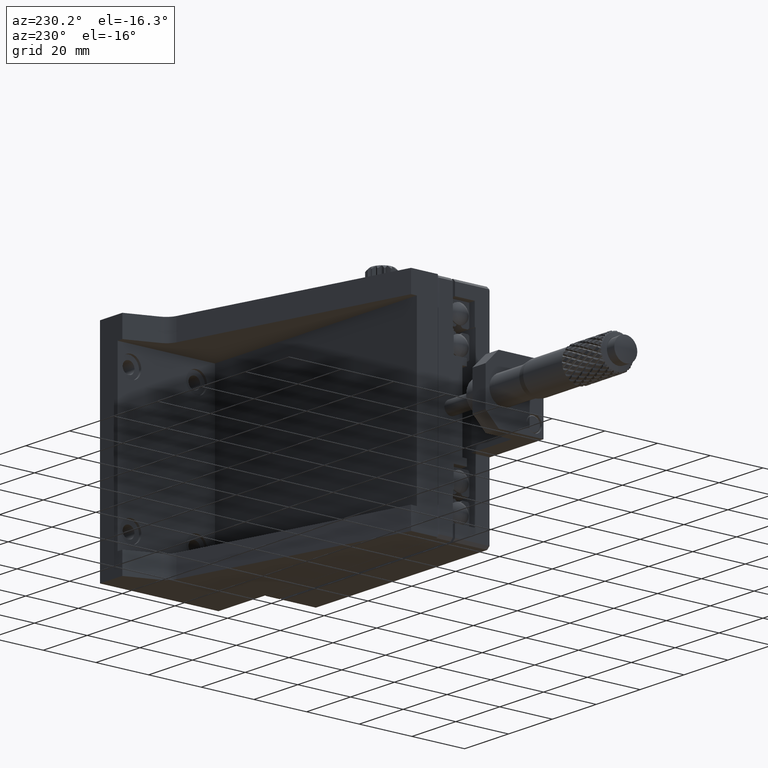
[diagram: clean part render]
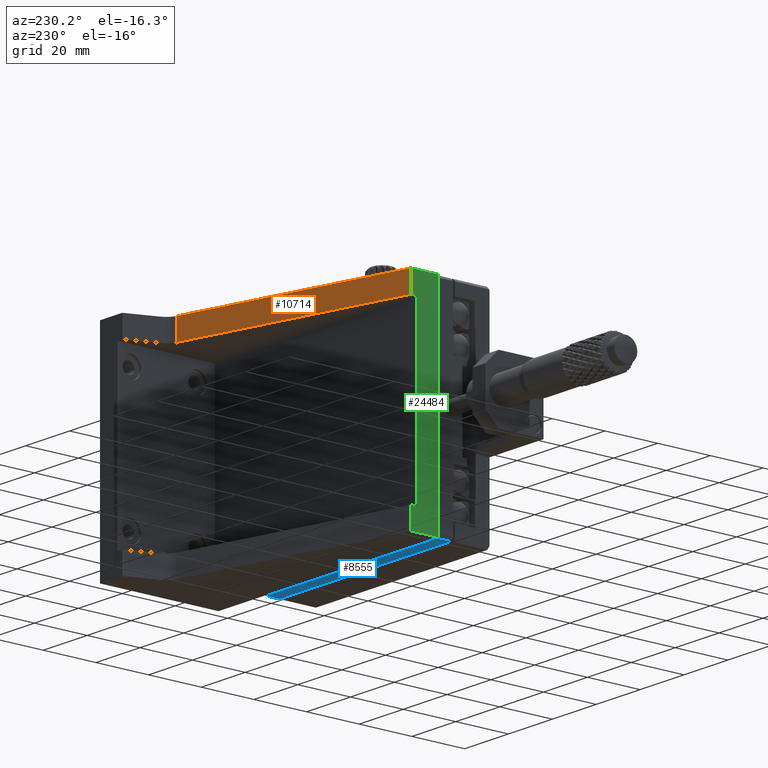
[diagram: same view with three faces highlighted in distinct colors, each labeled with its STEP entity id]
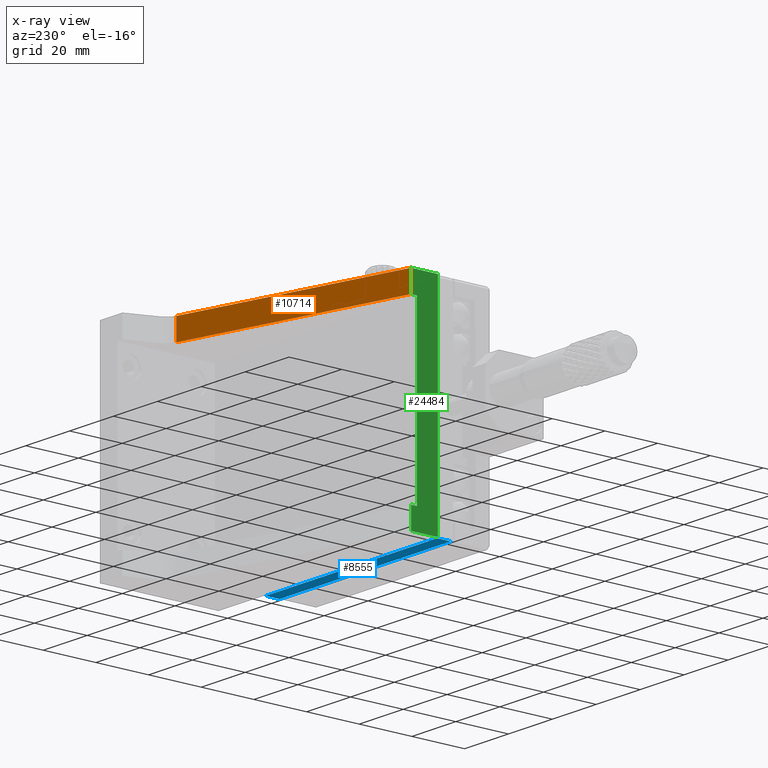
[diagram: x-ray of the same camera — body ghosted, the three highlighted faces saturated]
A machine part, auxiliary view with three faces highlighted in distinct colors.
The next image is the same camera in x-ray (body ghosted, the three faces saturated) — at least one of them is partly hidden behind the body in this view.
Their STEP definitions:

[orange] entity #10714 — the highlighted planar face has unit normal (0.2419, -0.9703, 0).
#511 = LINE ( 'NONE', #42593, #19809 ) ;
#2347 = EDGE_LOOP ( 'NONE', ( #17444, #37672, #26089, #45894 ) ) ;
#3021 = DIRECTION ( 'NONE',  ( 0.9702962835833601751, 0.2419196603509510546, 0.000000000000000000 ) ) ;
#3286 = EDGE_CURVE ( 'NONE', #30863, #34710, #8139, .T. ) ;
#3466 = DIRECTION ( 'NONE',  ( -0.000000000000000000, -0.000000000000000000, 1.000000000000000000 ) ) ;
#6544 = VECTOR ( 'NONE', #3021, 1000.000000000000000 ) ;
#8139 = LINE ( 'NONE', #22640, #11632 ) ;
#10714 = ADVANCED_FACE ( 'NONE', ( #37203 ), #13154, .F. ) ;
#11073 = CARTESIAN_POINT ( 'NONE',  ( 24.50000000000000000, 29.88799999999999812, 40.00000000000000000 ) ) ;
#11632 = VECTOR ( 'NONE', #46687, 999.9999999999998863 ) ;
#12595 = VERTEX_POINT ( 'NONE', #42671 ) ;
#13154 = PLANE ( 'NONE',  #27701 ) ;
#14038 = CARTESIAN_POINT ( 'NONE',  ( 106.7899008257490152, 50.40497527332474448, 32.00000000000000000 ) ) ;
#15444 = CARTESIAN_POINT ( 'NONE',  ( 106.7899008426495016, 50.40497527753849738, 32.00000000000000000 ) ) ;
#17444 = ORIENTED_EDGE ( 'NONE', *, *, #40138, .T. ) ;
#19809 = VECTOR ( 'NONE', #27629, 1000.000000000000000 ) ;
#21490 = CARTESIAN_POINT ( 'NONE',  ( 106.7899008257490152, 50.40497527332474448, 40.00000000000000000 ) ) ;
#22640 = CARTESIAN_POINT ( 'NONE',  ( 106.7899008426495016, 50.40497527753849738, 40.00000000000000000 ) ) ;
#25985 = VERTEX_POINT ( 'NONE', #14038 ) ;
#26089 = ORIENTED_EDGE ( 'NONE', *, *, #32382, .T. ) ;
#26838 = VECTOR ( 'NONE', #3466, 1000.000000000000000 ) ;
#27629 = DIRECTION ( 'NONE',  ( 0.000000000000000000, 0.000000000000000000, -1.000000000000000000 ) ) ;
#27701 = AXIS2_PLACEMENT_3D ( 'NONE', #29333, #32655, #44800 ) ;
#27710 = CARTESIAN_POINT ( 'NONE',  ( 24.50000000000000000, 29.88800000000000168, 40.00000000000000000 ) ) ;
#29333 = CARTESIAN_POINT ( 'NONE',  ( 106.7899008426495016, 50.40497527753849738, 40.00000000000000000 ) ) ;
#30863 = VERTEX_POINT ( 'NONE', #21490 ) ;
#32382 = EDGE_CURVE ( 'NONE', #30863, #25985, #511, .T. ) ;
#32655 = DIRECTION ( 'NONE',  ( 0.2419196603509510546, -0.9702962835833601751, 0.000000000000000000 ) ) ;
#34710 = VERTEX_POINT ( 'NONE', #27710 ) ;
#37203 = FACE_OUTER_BOUND ( 'NONE', #2347, .T. ) ;
#37386 = EDGE_CURVE ( 'NONE', #12595, #25985, #42031, .T. ) ;
#37672 = ORIENTED_EDGE ( 'NONE', *, *, #3286, .F. ) ;
#40138 = EDGE_CURVE ( 'NONE', #12595, #34710, #45779, .T. ) ;
#42031 = LINE ( 'NONE', #15444, #6544 ) ;
#42593 = CARTESIAN_POINT ( 'NONE',  ( 106.7899008426495300, 50.40497527753842633, 40.00000000000000000 ) ) ;
#42671 = CARTESIAN_POINT ( 'NONE',  ( 24.49999999999998934, 29.88800000000002655, 32.00000000000000000 ) ) ;
#44800 = DIRECTION ( 'NONE',  ( 0.9702962835833601751, 0.2419196603509510546, 0.000000000000000000 ) ) ;
#45779 = LINE ( 'NONE', #11073, #26838 ) ;
#45894 = ORIENTED_EDGE ( 'NONE', *, *, #37386, .F. ) ;
#46687 = DIRECTION ( 'NONE',  ( -0.9702962835833600641, -0.2419196603509519428, 0.000000000000000000 ) ) ;

[blue] entity #8555 — the highlighted planar face has unit normal (0, 0, -1).
#192 = CARTESIAN_POINT ( 'NONE',  ( 103.5000000000000142, 7.699999999999998401, -40.00000000000000000 ) ) ;
#595 = CARTESIAN_POINT ( 'NONE',  ( 103.5000000000000142, 19.19999999999999929, -39.99999999999999289 ) ) ;
#4889 = DIRECTION ( 'NONE',  ( -0.000000000000000000, -1.000000000000000000, -0.000000000000000000 ) ) ;
#4909 = EDGE_CURVE ( 'NONE', #43316, #31457, #8448, .T. ) ;
#5383 = CARTESIAN_POINT ( 'NONE',  ( 103.5000000000000142, 7.699999999999998401, -40.00000000000000000 ) ) ;
#6942 = CARTESIAN_POINT ( 'NONE',  ( 103.5000000000000142, 13.99999999999999822, -40.00000000000000000 ) ) ;
#7562 = PLANE ( 'NONE',  #31949 ) ;
#8448 = LINE ( 'NONE', #5383, #49684 ) ;
#8555 = ADVANCED_FACE ( 'NONE', ( #15451 ), #7562, .T. ) ;
#9381 = ORIENTED_EDGE ( 'NONE', *, *, #37538, .T. ) ;
#11043 = LINE ( 'NONE', #18656, #50116 ) ;
#12644 = CARTESIAN_POINT ( 'NONE',  ( 103.4999999999999858, 14.00000000000000178, -40.00000000000000711 ) ) ;
#14667 = VECTOR ( 'NONE', #38112, 1000.000000000000000 ) ;
#15451 = FACE_OUTER_BOUND ( 'NONE', #46545, .T. ) ;
#15692 = DIRECTION ( 'NONE',  ( -1.000000000000000000, 0.000000000000000000, -0.000000000000000000 ) ) ;
#17133 = VECTOR ( 'NONE', #17753, 1000.000000000000000 ) ;
#17753 = DIRECTION ( 'NONE',  ( 1.000000000000000000, 0.000000000000000000, 0.000000000000000000 ) ) ;
#18656 = CARTESIAN_POINT ( 'NONE',  ( 25.50000000000000355, 7.699999999999998401, -40.00000000000000000 ) ) ;
#19380 = ORIENTED_EDGE ( 'NONE', *, *, #4909, .T. ) ;
#19936 = CARTESIAN_POINT ( 'NONE',  ( 25.50000000000000355, 19.19999999999999574, -39.99999999999999289 ) ) ;
#20363 = EDGE_CURVE ( 'NONE', #33602, #42155, #11043, .T. ) ;
#22693 = LINE ( 'NONE', #6942, #14667 ) ;
#23070 = DIRECTION ( 'NONE',  ( 0.000000000000000000, 0.000000000000000000, -1.000000000000000000 ) ) ;
#25845 = CARTESIAN_POINT ( 'NONE',  ( 24.50000000000000000, 19.19999999999999929, -40.00000000000000000 ) ) ;
#31457 = VERTEX_POINT ( 'NONE', #12644 ) ;
#31949 = AXIS2_PLACEMENT_3D ( 'NONE', #192, #23070, #15692 ) ;
#33602 = VERTEX_POINT ( 'NONE', #40211 ) ;
#36743 = LINE ( 'NONE', #25845, #17133 ) ;
#37538 = EDGE_CURVE ( 'NONE', #31457, #33602, #22693, .T. ) ;
#38083 = ORIENTED_EDGE ( 'NONE', *, *, #39666, .T. ) ;
#38112 = DIRECTION ( 'NONE',  ( -1.000000000000000000, 0.000000000000000000, -0.000000000000000000 ) ) ;
#38394 = DIRECTION ( 'NONE',  ( 0.000000000000000000, 1.000000000000000000, 0.000000000000000000 ) ) ;
#39666 = EDGE_CURVE ( 'NONE', #42155, #43316, #36743, .T. ) ;
#40211 = CARTESIAN_POINT ( 'NONE',  ( 25.49999999999998579, 13.99999999999999822, -39.99999999999999289 ) ) ;
#42155 = VERTEX_POINT ( 'NONE', #19936 ) ;
#43316 = VERTEX_POINT ( 'NONE', #595 ) ;
#46467 = ORIENTED_EDGE ( 'NONE', *, *, #20363, .T. ) ;
#46545 = EDGE_LOOP ( 'NONE', ( #46467, #38083, #19380, #9381 ) ) ;
#49684 = VECTOR ( 'NONE', #4889, 1000.000000000000000 ) ;
#50116 = VECTOR ( 'NONE', #38394, 1000.000000000000000 ) ;

[green] entity #24484 — the highlighted planar face has unit normal (1, 0, 0).
#716 = LINE ( 'NONE', #16203, #22746 ) ;
#1797 = CARTESIAN_POINT ( 'NONE',  ( 24.50000000000000000, 55.25645668702769342, 40.00000000000000000 ) ) ;
#1836 = CARTESIAN_POINT ( 'NONE',  ( 24.50000000000000000, 19.69999999999999929, 40.00000000000000000 ) ) ;
#3466 = DIRECTION ( 'NONE',  ( -0.000000000000000000, -0.000000000000000000, 1.000000000000000000 ) ) ;
#4233 = EDGE_LOOP ( 'NONE', ( #5777, #12429, #14939, #17475, #24837, #8057, #39241, #46584 ) ) ;
#5348 = LINE ( 'NONE', #1797, #35756 ) ;
#5777 = ORIENTED_EDGE ( 'NONE', *, *, #33720, .F. ) ;
#6278 = VECTOR ( 'NONE', #46219, 1000.000000000000000 ) ;
#6525 = LINE ( 'NONE', #41751, #41462 ) ;
#7769 = CARTESIAN_POINT ( 'NONE',  ( 24.50000000000000000, 27.69999999999999574, -32.00000000000000000 ) ) ;
#8057 = ORIENTED_EDGE ( 'NONE', *, *, #26269, .F. ) ;
#8180 = EDGE_CURVE ( 'NONE', #33866, #18026, #13267, .T. ) ;
#8767 = DIRECTION ( 'NONE',  ( -0.000000000000000000, -0.000000000000000000, 1.000000000000000000 ) ) ;
#10296 = CARTESIAN_POINT ( 'NONE',  ( 24.50000000000000000, 19.69999999999999929, 40.00000000000000000 ) ) ;
#10579 = CARTESIAN_POINT ( 'NONE',  ( 24.49999999999998934, 29.88800000000002655, -32.00000000000000711 ) ) ;
#10819 = EDGE_CURVE ( 'NONE', #45261, #44167, #6525, .T. ) ;
#11073 = CARTESIAN_POINT ( 'NONE',  ( 24.50000000000000000, 29.88799999999999812, 40.00000000000000000 ) ) ;
#11326 = CARTESIAN_POINT ( 'NONE',  ( 24.50000000000000000, 27.69999999999999929, 40.00000000000000000 ) ) ;
#12397 = EDGE_CURVE ( 'NONE', #23427, #45261, #36387, .T. ) ;
#12429 = ORIENTED_EDGE ( 'NONE', *, *, #10819, .F. ) ;
#12595 = VERTEX_POINT ( 'NONE', #42671 ) ;
#12757 = VECTOR ( 'NONE', #8767, 1000.000000000000000 ) ;
#13267 = LINE ( 'NONE', #1836, #39252 ) ;
#14789 = EDGE_CURVE ( 'NONE', #23427, #33866, #19119, .T. ) ;
#14939 = ORIENTED_EDGE ( 'NONE', *, *, #12397, .F. ) ;
#16203 = CARTESIAN_POINT ( 'NONE',  ( 24.50000000000000000, 29.88799999999999812, 32.00000000000000000 ) ) ;
#17475 = ORIENTED_EDGE ( 'NONE', *, *, #14789, .T. ) ;
#17478 = CARTESIAN_POINT ( 'NONE',  ( 24.50000000000000000, 27.69999999999999574, 32.00000000000000000 ) ) ;
#18026 = VERTEX_POINT ( 'NONE', #10296 ) ;
#19119 = LINE ( 'NONE', #49781, #6278 ) ;
#21290 = DIRECTION ( 'NONE',  ( 1.000000000000000000, 0.000000000000000000, 0.000000000000000000 ) ) ;
#22501 = LINE ( 'NONE', #11326, #40858 ) ;
#22520 = DIRECTION ( 'NONE',  ( 0.000000000000000000, -1.000000000000000000, -0.000000000000000000 ) ) ;
#22746 = VECTOR ( 'NONE', #31651, 1000.000000000000000 ) ;
#23427 = VERTEX_POINT ( 'NONE', #38159 ) ;
#24188 = DIRECTION ( 'NONE',  ( 0.000000000000000000, -0.000000000000000000, 1.000000000000000000 ) ) ;
#24484 = ADVANCED_FACE ( 'NONE', ( #43822 ), #28601, .F. ) ;
#24837 = ORIENTED_EDGE ( 'NONE', *, *, #8180, .T. ) ;
#26269 = EDGE_CURVE ( 'NONE', #34710, #18026, #5348, .T. ) ;
#26838 = VECTOR ( 'NONE', #3466, 1000.000000000000000 ) ;
#27710 = CARTESIAN_POINT ( 'NONE',  ( 24.50000000000000000, 29.88800000000000168, 40.00000000000000000 ) ) ;
#28601 = PLANE ( 'NONE',  #41630 ) ;
#28655 = VERTEX_POINT ( 'NONE', #17478 ) ;
#31651 = DIRECTION ( 'NONE',  ( -0.000000000000000000, 1.000000000000000000, 0.000000000000000000 ) ) ;
#32730 = DIRECTION ( 'NONE',  ( 0.000000000000000000, -1.000000000000000000, -0.000000000000000000 ) ) ;
#33720 = EDGE_CURVE ( 'NONE', #44167, #28655, #22501, .T. ) ;
#33866 = VERTEX_POINT ( 'NONE', #37984 ) ;
#34710 = VERTEX_POINT ( 'NONE', #27710 ) ;
#35756 = VECTOR ( 'NONE', #32730, 1000.000000000000000 ) ;
#36387 = LINE ( 'NONE', #47555, #12757 ) ;
#36786 = EDGE_CURVE ( 'NONE', #28655, #12595, #716, .T. ) ;
#37984 = CARTESIAN_POINT ( 'NONE',  ( 24.50000000000000000, 19.69999999999999929, -40.00000000000000000 ) ) ;
#38159 = CARTESIAN_POINT ( 'NONE',  ( 24.50000000000000000, 29.88800000000000168, -40.00000000000000000 ) ) ;
#39241 = ORIENTED_EDGE ( 'NONE', *, *, #40138, .F. ) ;
#39252 = VECTOR ( 'NONE', #24188, 1000.000000000000000 ) ;
#39361 = DIRECTION ( 'NONE',  ( -0.000000000000000000, -0.000000000000000000, 1.000000000000000000 ) ) ;
#40026 = DIRECTION ( 'NONE',  ( 0.000000000000000000, 0.000000000000000000, -1.000000000000000000 ) ) ;
#40138 = EDGE_CURVE ( 'NONE', #12595, #34710, #45779, .T. ) ;
#40524 = CARTESIAN_POINT ( 'NONE',  ( 24.50000000000000000, 29.88799999999999812, 40.00000000000000000 ) ) ;
#40858 = VECTOR ( 'NONE', #39361, 1000.000000000000000 ) ;
#41462 = VECTOR ( 'NONE', #22520, 1000.000000000000000 ) ;
#41630 = AXIS2_PLACEMENT_3D ( 'NONE', #40524, #21290, #40026 ) ;
#41751 = CARTESIAN_POINT ( 'NONE',  ( 24.50000000000000000, 29.88799999999999812, -32.00000000000000711 ) ) ;
#42671 = CARTESIAN_POINT ( 'NONE',  ( 24.49999999999998934, 29.88800000000002655, 32.00000000000000000 ) ) ;
#43822 = FACE_OUTER_BOUND ( 'NONE', #4233, .T. ) ;
#44167 = VERTEX_POINT ( 'NONE', #7769 ) ;
#45261 = VERTEX_POINT ( 'NONE', #10579 ) ;
#45779 = LINE ( 'NONE', #11073, #26838 ) ;
#46219 = DIRECTION ( 'NONE',  ( 0.000000000000000000, -1.000000000000000000, -0.000000000000000000 ) ) ;
#46584 = ORIENTED_EDGE ( 'NONE', *, *, #36786, .F. ) ;
#47555 = CARTESIAN_POINT ( 'NONE',  ( 24.50000000000000000, 29.88799999999999812, 40.00000000000000000 ) ) ;
#49781 = CARTESIAN_POINT ( 'NONE',  ( 24.50000000000000000, 55.25645668702769342, -40.00000000000000000 ) ) ;